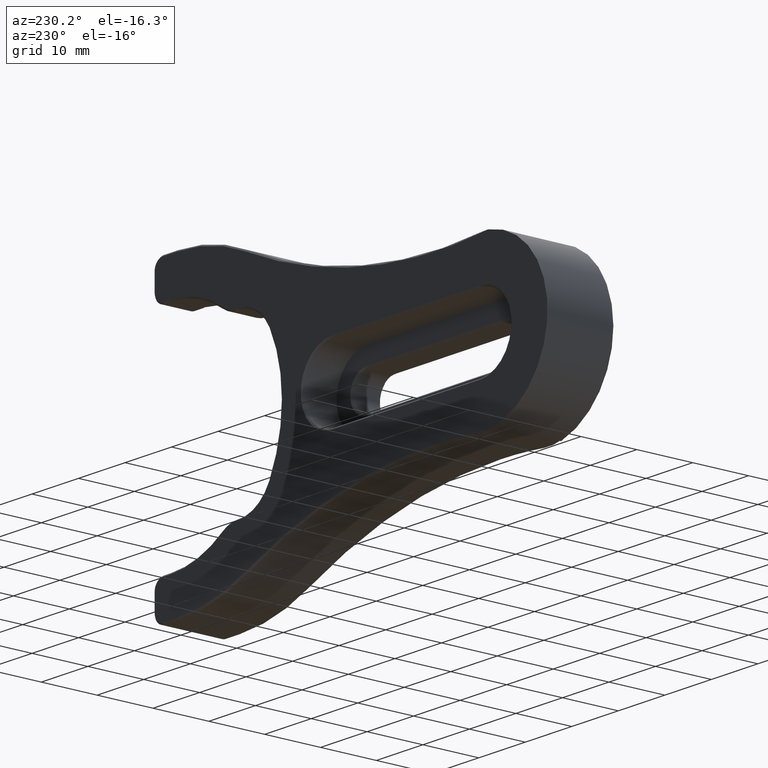
[diagram: clean part render]
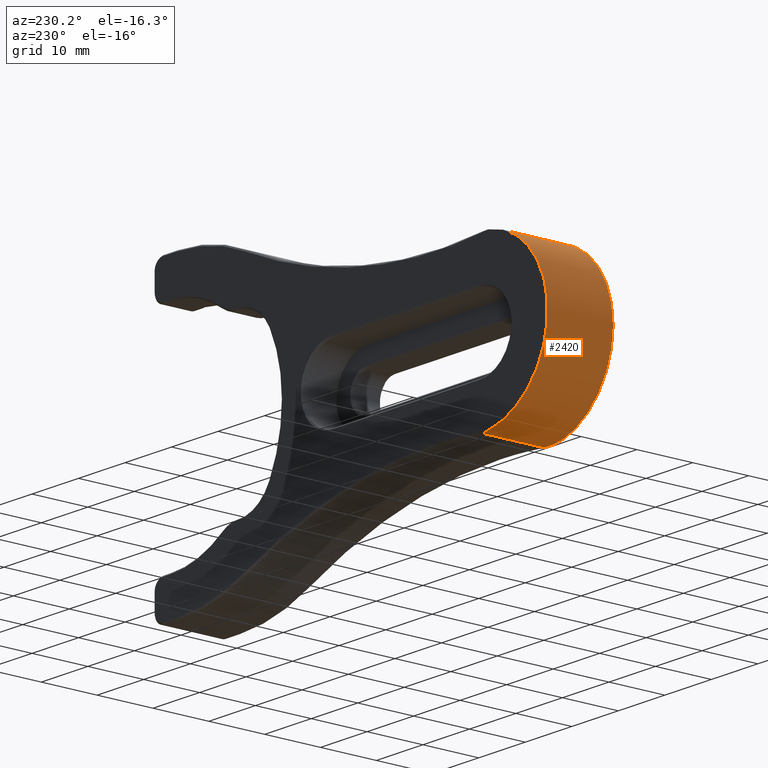
[diagram: same view with one face highlighted and labeled with its STEP entity id]
A machine part, auxiliary view. The second image highlights one B-rep face of the part: STEP entity #2420.
In plain terms, the highlighted cylindrical surface (partial cylindrical patch) has radius 14.5 mm, axis along (-0, 1, -0).
Its self-contained STEP definition (entity closure, byte-faithful):
#30 = VECTOR ( 'NONE', #1192, 1000.000000000000000 ) ;
#37 = VECTOR ( 'NONE', #2816, 1000.000000000000000 ) ;
#63 = VERTEX_POINT ( 'NONE', #2478 ) ;
#70 = ORIENTED_EDGE ( 'NONE', *, *, #986, .T. ) ;
#85 = ORIENTED_EDGE ( 'NONE', *, *, #1180, .T. ) ;
#124 = DIRECTION ( 'NONE',  ( -0.000000000000000000, 1.000000000000000000, -0.000000000000000000 ) ) ;
#154 = CARTESIAN_POINT ( 'NONE',  ( -67.04315519673120605, 0.000000000000000000, -14.49593889718621043 ) ) ;
#160 = CARTESIAN_POINT ( 'NONE',  ( -69.99999999999998579, 0.000000000000000000, -14.11949007577822535 ) ) ;
#178 = AXIS2_PLACEMENT_3D ( 'NONE', #890, #124, #2201 ) ;
#281 = CARTESIAN_POINT ( 'NONE',  ( -68.45171389116202931, 12.00000000000000000, 14.39380069486548663 ) ) ;
#304 = LINE ( 'NONE', #2849, #37 ) ;
#355 = VECTOR ( 'NONE', #1432, 1000.000000000000000 ) ;
#356 = EDGE_CURVE ( 'NONE', #1871, #469, #2928, .T. ) ;
#368 = CARTESIAN_POINT ( 'NONE',  ( -69.99999999999998579, 0.2500000000000088818, 14.11949007577824311 ) ) ;
#389 = DIRECTION ( 'NONE',  ( -0.000000000000000000, 1.000000000000000000, -0.000000000000000000 ) ) ;
#399 = CARTESIAN_POINT ( 'NONE',  ( -67.98822634382541708, 0.6081838984864484932, -14.45020675413096711 ) ) ;
#402 = CARTESIAN_POINT ( 'NONE',  ( -67.04315519673120605, 11.75000000000002842, -14.49593889718621043 ) ) ;
#406 = VERTEX_POINT ( 'NONE', #402 ) ;
#452 = ORIENTED_EDGE ( 'NONE', *, *, #1519, .T. ) ;
#455 = DIRECTION ( 'NONE',  ( 0.000000000000000000, 0.000000000000000000, 1.000000000000000000 ) ) ;
#469 = VERTEX_POINT ( 'NONE', #368 ) ;
#470 = DIRECTION ( 'NONE',  ( 0.000000000000000000, 0.000000000000000000, 1.000000000000000000 ) ) ;
#472 = CARTESIAN_POINT ( 'NONE',  ( -67.04315519673122026, 11.75000000000002842, 14.49593889718622819 ) ) ;
#528 = DIRECTION ( 'NONE',  ( -0.000000000000000000, -1.000000000000000000, -0.000000000000000000 ) ) ;
#567 = ORIENTED_EDGE ( 'NONE', *, *, #932, .T. ) ;
#583 = EDGE_CURVE ( 'NONE', #1927, #1871, #705, .T. ) ;
#604 = AXIS2_PLACEMENT_3D ( 'NONE', #1256, #528, #455 ) ;
#617 = EDGE_CURVE ( 'NONE', #2302, #406, #666, .T. ) ;
#646 = CYLINDRICAL_SURFACE ( 'NONE', #2744, 14.50000000000000000 ) ;
#649 = CARTESIAN_POINT ( 'NONE',  ( -69.99999999999998579, 0.5000000000000000000, -14.11949007577822535 ) ) ;
#666 = B_SPLINE_CURVE_WITH_KNOTS ( 'NONE', 3,
 ( #2973, #2823, #1054, #2073 ),
 .UNSPECIFIED., .F., .F.,
 ( 4, 4 ),
 ( 0.000000000000000000, 0.001434214003568068212 ),
 .UNSPECIFIED. ) ;
#673 = CARTESIAN_POINT ( 'NONE',  ( -66.69999999999998863, 0.2500000000000088818, 8.168394150312848266E-15 ) ) ;
#705 = LINE ( 'NONE', #160, #30 ) ;
#834 = EDGE_CURVE ( 'NONE', #2919, #406, #2464, .T. ) ;
#865 = ORIENTED_EDGE ( 'NONE', *, *, #1919, .T. ) ;
#888 = CIRCLE ( 'NONE', #2278, 14.50000000000000000 ) ;
#890 = CARTESIAN_POINT ( 'NONE',  ( -66.69999999999998863, 0.5000000000000000000, 8.168394150312848266E-15 ) ) ;
#896 = DIRECTION ( 'NONE',  ( 0.000000000000000000, 1.000000000000000000, 0.000000000000000000 ) ) ;
#906 = CARTESIAN_POINT ( 'NONE',  ( -67.51883333682735611, 0.6920564154790941336, -14.48467840368502024 ) ) ;
#925 = VERTEX_POINT ( 'NONE', #933 ) ;
#932 = EDGE_CURVE ( 'NONE', #1226, #2302, #1509, .T. ) ;
#933 = CARTESIAN_POINT ( 'NONE',  ( -68.45171389116231353, 0.5000000000000000000, -14.39380069486543690 ) ) ;
#986 = EDGE_CURVE ( 'NONE', #1247, #1226, #1503, .T. ) ;
#1054 = CARTESIAN_POINT ( 'NONE',  ( -67.51883333682735611, 11.80794358452093107, -14.48467840368502024 ) ) ;
#1056 = CARTESIAN_POINT ( 'NONE',  ( -69.99999999999998579, 0.2500000000000088818, -14.11949007577822535 ) ) ;
#1180 = EDGE_CURVE ( 'NONE', #469, #63, #1369, .T. ) ;
#1192 = DIRECTION ( 'NONE',  ( 0.000000000000000000, -1.000000000000000000, 0.000000000000000000 ) ) ;
#1226 = VERTEX_POINT ( 'NONE', #281 ) ;
#1245 = VERTEX_POINT ( 'NONE', #1744 ) ;
#1247 = VERTEX_POINT ( 'NONE', #3256 ) ;
#1248 = CARTESIAN_POINT ( 'NONE',  ( -67.04315519673120605, 0.7499999999999933387, -14.49593889718621043 ) ) ;
#1256 = CARTESIAN_POINT ( 'NONE',  ( -66.69999999999998863, 12.00000000000000000, 8.168394150312848266E-15 ) ) ;
#1304 = CARTESIAN_POINT ( 'NONE',  ( -68.45171389116202931, 12.00000000000000000, 14.39380069486548663 ) ) ;
#1369 = LINE ( 'NONE', #2245, #2032 ) ;
#1421 = CARTESIAN_POINT ( 'NONE',  ( -68.45171389116231353, 0.5000000000000000000, -14.39380069486543690 ) ) ;
#1432 = DIRECTION ( 'NONE',  ( -0.000000000000000000, 1.000000000000000000, -0.000000000000000000 ) ) ;
#1438 = CARTESIAN_POINT ( 'NONE',  ( -68.45171389116201510, 0.5000000000000000000, 14.39380069486549196 ) ) ;
#1503 = B_SPLINE_CURVE_WITH_KNOTS ( 'NONE', 3,
 ( #472, #1764, #1514, #1304 ),
 .UNSPECIFIED., .F., .F.,
 ( 4, 4 ),
 ( 0.000000000000000000, 0.001434214003567783500 ),
 .UNSPECIFIED. ) ;
#1509 = CIRCLE ( 'NONE', #604, 14.50000000000000000 ) ;
#1514 = CARTESIAN_POINT ( 'NONE',  ( -67.98822634382523233, 11.89181610151351798, 14.45020675413100086 ) ) ;
#1519 = EDGE_CURVE ( 'NONE', #2558, #1245, #3239, .T. ) ;
#1578 = EDGE_CURVE ( 'NONE', #2919, #925, #1768, .T. ) ;
#1661 = DIRECTION ( 'NONE',  ( 0.000000000000000000, 0.000000000000000000, 1.000000000000000000 ) ) ;
#1666 = CARTESIAN_POINT ( 'NONE',  ( -66.69999999999998863, 0.000000000000000000, 8.168394150312848266E-15 ) ) ;
#1744 = CARTESIAN_POINT ( 'NONE',  ( -67.04315519673122026, 0.7499999999999933387, 14.49593889718622819 ) ) ;
#1764 = CARTESIAN_POINT ( 'NONE',  ( -67.51883333682727084, 11.80794358452090975, 14.48467840368503978 ) ) ;
#1768 = B_SPLINE_CURVE_WITH_KNOTS ( 'NONE', 3,
 ( #3188, #906, #399, #1421 ),
 .UNSPECIFIED., .F., .F.,
 ( 4, 4 ),
 ( 0.000000000000000000, 0.001434214003568074283 ),
 .UNSPECIFIED. ) ;
#1871 = VERTEX_POINT ( 'NONE', #1056 ) ;
#1916 = EDGE_CURVE ( 'NONE', #925, #1927, #2750, .T. ) ;
#1919 = EDGE_CURVE ( 'NONE', #63, #2558, #888, .T. ) ;
#1927 = VERTEX_POINT ( 'NONE', #649 ) ;
#1954 = ORIENTED_EDGE ( 'NONE', *, *, #617, .T. ) ;
#2032 = VECTOR ( 'NONE', #2229, 1000.000000000000000 ) ;
#2037 = ORIENTED_EDGE ( 'NONE', *, *, #583, .T. ) ;
#2073 = CARTESIAN_POINT ( 'NONE',  ( -67.04315519673120605, 11.75000000000002842, -14.49593889718621043 ) ) ;
#2197 = ORIENTED_EDGE ( 'NONE', *, *, #1916, .T. ) ;
#2201 = DIRECTION ( 'NONE',  ( -9.570888143320315888E-16, 0.000000000000000000, -1.000000000000000000 ) ) ;
#2229 = DIRECTION ( 'NONE',  ( -0.000000000000000000, 1.000000000000000000, -0.000000000000000000 ) ) ;
#2245 = CARTESIAN_POINT ( 'NONE',  ( -69.99999999999998579, 0.000000000000000000, 14.11949007577824311 ) ) ;
#2257 = ORIENTED_EDGE ( 'NONE', *, *, #834, .F. ) ;
#2278 = AXIS2_PLACEMENT_3D ( 'NONE', #2930, #2465, #2945 ) ;
#2302 = VERTEX_POINT ( 'NONE', #2962 ) ;
#2352 = AXIS2_PLACEMENT_3D ( 'NONE', #673, #896, #1661 ) ;
#2420 = ADVANCED_FACE ( 'NONE', ( #2927 ), #646, .T. ) ;
#2464 = LINE ( 'NONE', #154, #355 ) ;
#2465 = DIRECTION ( 'NONE',  ( -0.000000000000000000, 1.000000000000000000, -0.000000000000000000 ) ) ;
#2478 = CARTESIAN_POINT ( 'NONE',  ( -69.99999999999998579, 0.5000000000000000000, 14.11949007577824311 ) ) ;
#2558 = VERTEX_POINT ( 'NONE', #3012 ) ;
#2658 = ORIENTED_EDGE ( 'NONE', *, *, #2667, .T. ) ;
#2667 = EDGE_CURVE ( 'NONE', #1245, #1247, #304, .T. ) ;
#2719 = CARTESIAN_POINT ( 'NONE',  ( -67.98822634382521812, 0.6081838984864291753, 14.45020675413095823 ) ) ;
#2720 = EDGE_LOOP ( 'NONE', ( #2037, #2775, #85, #865, #452, #2658, #70, #567, #1954, #2257, #2910, #2197 ) ) ;
#2744 = AXIS2_PLACEMENT_3D ( 'NONE', #1666, #389, #470 ) ;
#2750 = CIRCLE ( 'NONE', #178, 14.50000000000000000 ) ;
#2775 = ORIENTED_EDGE ( 'NONE', *, *, #356, .T. ) ;
#2816 = DIRECTION ( 'NONE',  ( -0.000000000000000000, 1.000000000000000000, -0.000000000000000000 ) ) ;
#2823 = CARTESIAN_POINT ( 'NONE',  ( -67.98822634382541708, 11.89181610151355173, -14.45020675413096534 ) ) ;
#2849 = CARTESIAN_POINT ( 'NONE',  ( -67.04315519673122026, 0.000000000000000000, 14.49593889718622819 ) ) ;
#2910 = ORIENTED_EDGE ( 'NONE', *, *, #1578, .T. ) ;
#2919 = VERTEX_POINT ( 'NONE', #1248 ) ;
#2927 = FACE_OUTER_BOUND ( 'NONE', #2720, .T. ) ;
#2928 = CIRCLE ( 'NONE', #2352, 14.50000000000000000 ) ;
#2930 = CARTESIAN_POINT ( 'NONE',  ( -66.69999999999998863, 0.5000000000000000000, 8.168394150312848266E-15 ) ) ;
#2945 = DIRECTION ( 'NONE',  ( 0.000000000000000000, 0.000000000000000000, -1.000000000000000000 ) ) ;
#2962 = CARTESIAN_POINT ( 'NONE',  ( -68.45171389116231353, 12.00000000000000000, -14.39380069486543690 ) ) ;
#2973 = CARTESIAN_POINT ( 'NONE',  ( -68.45171389116231353, 12.00000000000000000, -14.39380069486543690 ) ) ;
#2986 = CARTESIAN_POINT ( 'NONE',  ( -67.51883333682728505, 0.6920564154791066791, 14.48467840368503445 ) ) ;
#3012 = CARTESIAN_POINT ( 'NONE',  ( -68.45171389116201510, 0.5000000000000000000, 14.39380069486549196 ) ) ;
#3188 = CARTESIAN_POINT ( 'NONE',  ( -67.04315519673120605, 0.7499999999999933387, -14.49593889718621043 ) ) ;
#3205 = CARTESIAN_POINT ( 'NONE',  ( -67.04315519673122026, 0.7499999999999933387, 14.49593889718622819 ) ) ;
#3239 = B_SPLINE_CURVE_WITH_KNOTS ( 'NONE', 3,
 ( #1438, #2719, #2986, #3205 ),
 .UNSPECIFIED., .F., .F.,
 ( 4, 4 ),
 ( 5.421010862427522170E-19, 0.001434214003567774610 ),
 .UNSPECIFIED. ) ;
#3256 = CARTESIAN_POINT ( 'NONE',  ( -67.04315519673122026, 11.75000000000002842, 14.49593889718622819 ) ) ;